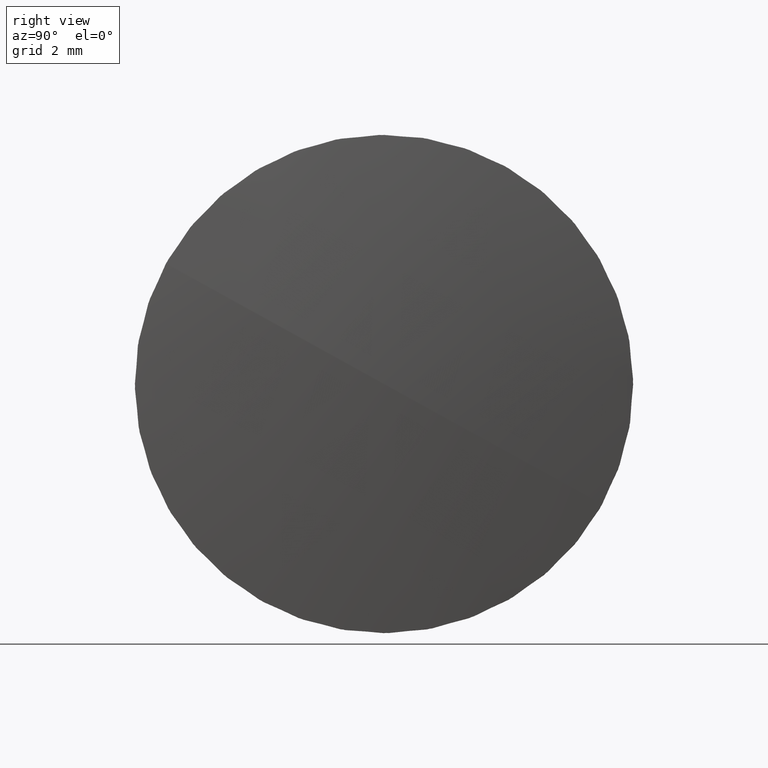
[diagram: clean part render]
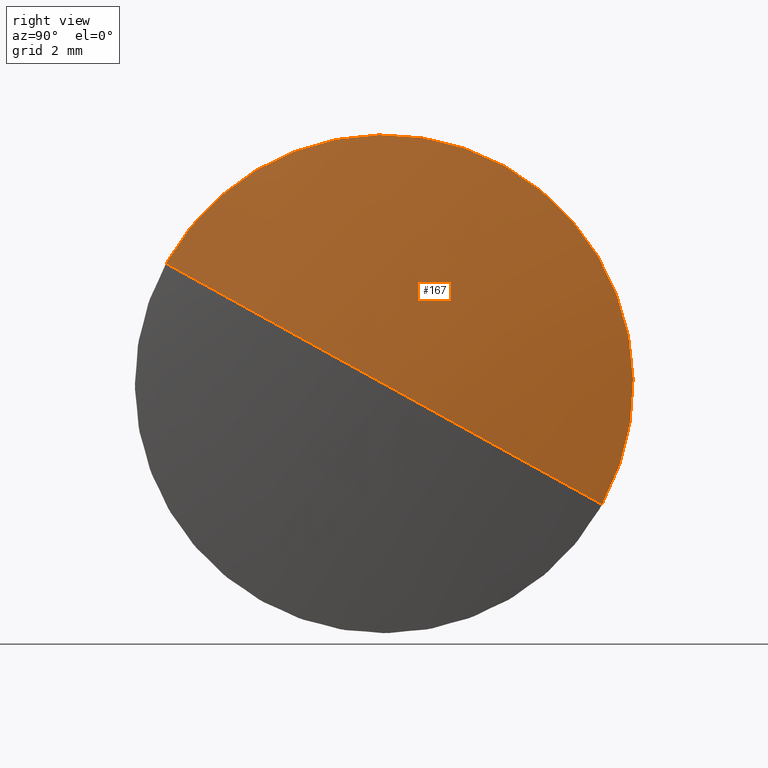
[diagram: same view with one face highlighted and labeled with its STEP entity id]
A machine part, right view. The second image highlights one B-rep face of the part: STEP entity #167.
In plain terms, the highlighted spherical surface has radius 52.14 mm.
Its self-contained STEP definition (entity closure, byte-faithful):
#2 = ORIENTED_EDGE ( 'NONE', *, *, #291, .T. ) ;
#5 = DIRECTION ( 'NONE',  ( 1.173094865929737913E-16, 0.4836518060285192044, 0.8752604929535846567 ) ) ;
#11 = EDGE_CURVE ( 'NONE', #445, #209, #308, .T. ) ;
#20 = DIRECTION ( 'NONE',  ( 0.000000000000000000, 0.4836518060285191489, 0.8752604929535845457 ) ) ;
#31 = CARTESIAN_POINT ( 'NONE',  ( -63.20740906827801098, 8.303582838317279169, 3.071188968281062692 ) ) ;
#34 = CIRCLE ( 'NONE', #122, 6.349999999999999645 ) ;
#45 = CARTESIAN_POINT ( 'NONE',  ( -63.20740906827801098, 19.41939109882771675, -3.071188968281085341 ) ) ;
#46 = EDGE_CURVE ( 'NONE', #159, #306, #34, .T. ) ;
#48 = ORIENTED_EDGE ( 'NONE', *, *, #243, .F. ) ;
#69 = FACE_OUTER_BOUND ( 'NONE', #412, .T. ) ;
#83 = CIRCLE ( 'NONE', #330, 6.349999999999999645 ) ;
#103 = CIRCLE ( 'NONE', #180, 52.14000000000001478 ) ;
#106 = SPHERICAL_SURFACE ( 'NONE', #377, 52.14000000000000767 ) ;
#122 = AXIS2_PLACEMENT_3D ( 'NONE', #434, #156, #20 ) ;
#144 = DIRECTION ( 'NONE',  ( 0.000000000000000000, 0.8752604929535845457, -0.4836518060285191489 ) ) ;
#156 = DIRECTION ( 'NONE',  ( -1.000000000000000000, 4.163336342344351818E-17, 1.110223024625159006E-16 ) ) ;
#159 = VERTEX_POINT ( 'NONE', #211 ) ;
#167 = ADVANCED_FACE ( 'NONE', ( #69 ), #106, .T. ) ;
#180 = AXIS2_PLACEMENT_3D ( 'NONE', #185, #5, #216 ) ;
#185 = CARTESIAN_POINT ( 'NONE',  ( -114.9592892273601734, 13.86148696857249440, -8.064768495347047099E-16 ) ) ;
#202 = DIRECTION ( 'NONE',  ( 0.000000000000000000, 0.8752604929535845457, -0.4836518060285190379 ) ) ;
#209 = VERTEX_POINT ( 'NONE', #31 ) ;
#211 = CARTESIAN_POINT ( 'NONE',  ( -63.20740906827801098, 16.93267593685358818, 5.557904130255254316 ) ) ;
#216 = DIRECTION ( 'NONE',  ( 0.000000000000000000, -0.8752604929535844347, 0.4836518060285190934 ) ) ;
#243 = EDGE_CURVE ( 'NONE', #209, #159, #83, .T. ) ;
#269 = DIRECTION ( 'NONE',  ( -1.173094865929737913E-16, -0.4836518060285191489, -0.8752604929535845457 ) ) ;
#287 = DIRECTION ( 'NONE',  ( -1.173094865929737667E-16, -0.4836518060285189824, -0.8752604929535845457 ) ) ;
#291 = EDGE_CURVE ( 'NONE', #445, #306, #103, .T. ) ;
#306 = VERTEX_POINT ( 'NONE', #45 ) ;
#308 = CIRCLE ( 'NONE', #435, 52.14000000000000057 ) ;
#318 = CARTESIAN_POINT ( 'NONE',  ( -114.9592892273601734, 13.86148696857249440, -8.064768495347047099E-16 ) ) ;
#330 = AXIS2_PLACEMENT_3D ( 'NONE', #369, #441, #446 ) ;
#348 = CARTESIAN_POINT ( 'NONE',  ( -62.81928922736017284, 13.86148696857249440, -8.139312672385491349E-15 ) ) ;
#369 = CARTESIAN_POINT ( 'NONE',  ( -63.20740906827801098, 13.86148696857249263, -6.552089741560200011E-15 ) ) ;
#377 = AXIS2_PLACEMENT_3D ( 'NONE', #409, #269, #144 ) ;
#399 = ORIENTED_EDGE ( 'NONE', *, *, #11, .F. ) ;
#409 = CARTESIAN_POINT ( 'NONE',  ( -114.9592892273601734, 13.86148696857249440, -8.064768495347047099E-16 ) ) ;
#410 = ORIENTED_EDGE ( 'NONE', *, *, #46, .F. ) ;
#412 = EDGE_LOOP ( 'NONE', ( #399, #2, #410, #48 ) ) ;
#434 = CARTESIAN_POINT ( 'NONE',  ( -63.20740906827801098, 13.86148696857249263, -6.552089741560200011E-15 ) ) ;
#435 = AXIS2_PLACEMENT_3D ( 'NONE', #318, #287, #202 ) ;
#441 = DIRECTION ( 'NONE',  ( -1.000000000000000000, 4.163336342344351818E-17, 1.110223024625159006E-16 ) ) ;
#445 = VERTEX_POINT ( 'NONE', #348 ) ;
#446 = DIRECTION ( 'NONE',  ( 0.000000000000000000, 0.4836518060285191489, 0.8752604929535845457 ) ) ;